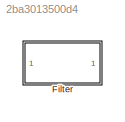
MODEL slx_2ba3013500d4
KIND model
CONFIG AbsTol = auto
CONFIG EnableMultiTasking = off
CONFIG FixedStep = auto
CONFIG MaxStep = auto
CONFIG MinStep = auto
CONFIG RelTol = 1e-3
CONFIG SampleTimeConstraint = Unconstrained
CONFIG SolverName = VariableStepAuto
CONFIG StartTime = 0.0
CONFIG StopTime = 10.0
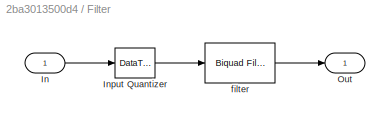
BLOCK [SubSystem] Filter
  Ports = [1, 1]
  RequestExecContextInheritance = off
  Tag = BlockMethodSubSystem
BLOCK [Inport] Filter/In
BLOCK [DataTypeConversion] Filter/Input Quantizer
  OutDataTypeStr = fixdt(1,12,0)
  RndMeth = Round
BLOCK [Outport] Filter/Out
BLOCK [Reference] Filter/filter  REF=dsparch4/Biquad Filter
  Ports = [1, 1]
  SourceBlock = dsparch4/Biquad Filter
  SourceProductBaseCode = DS
  SourceType = Biquad Filter
  UserDataPersistent = on
LINE Filter/In:1 -> Filter/Input Quantizer:1
LINE Filter/Input Quantizer:1 -> Filter/filter:1
LINE Filter/filter:1 -> Filter/Out:1
